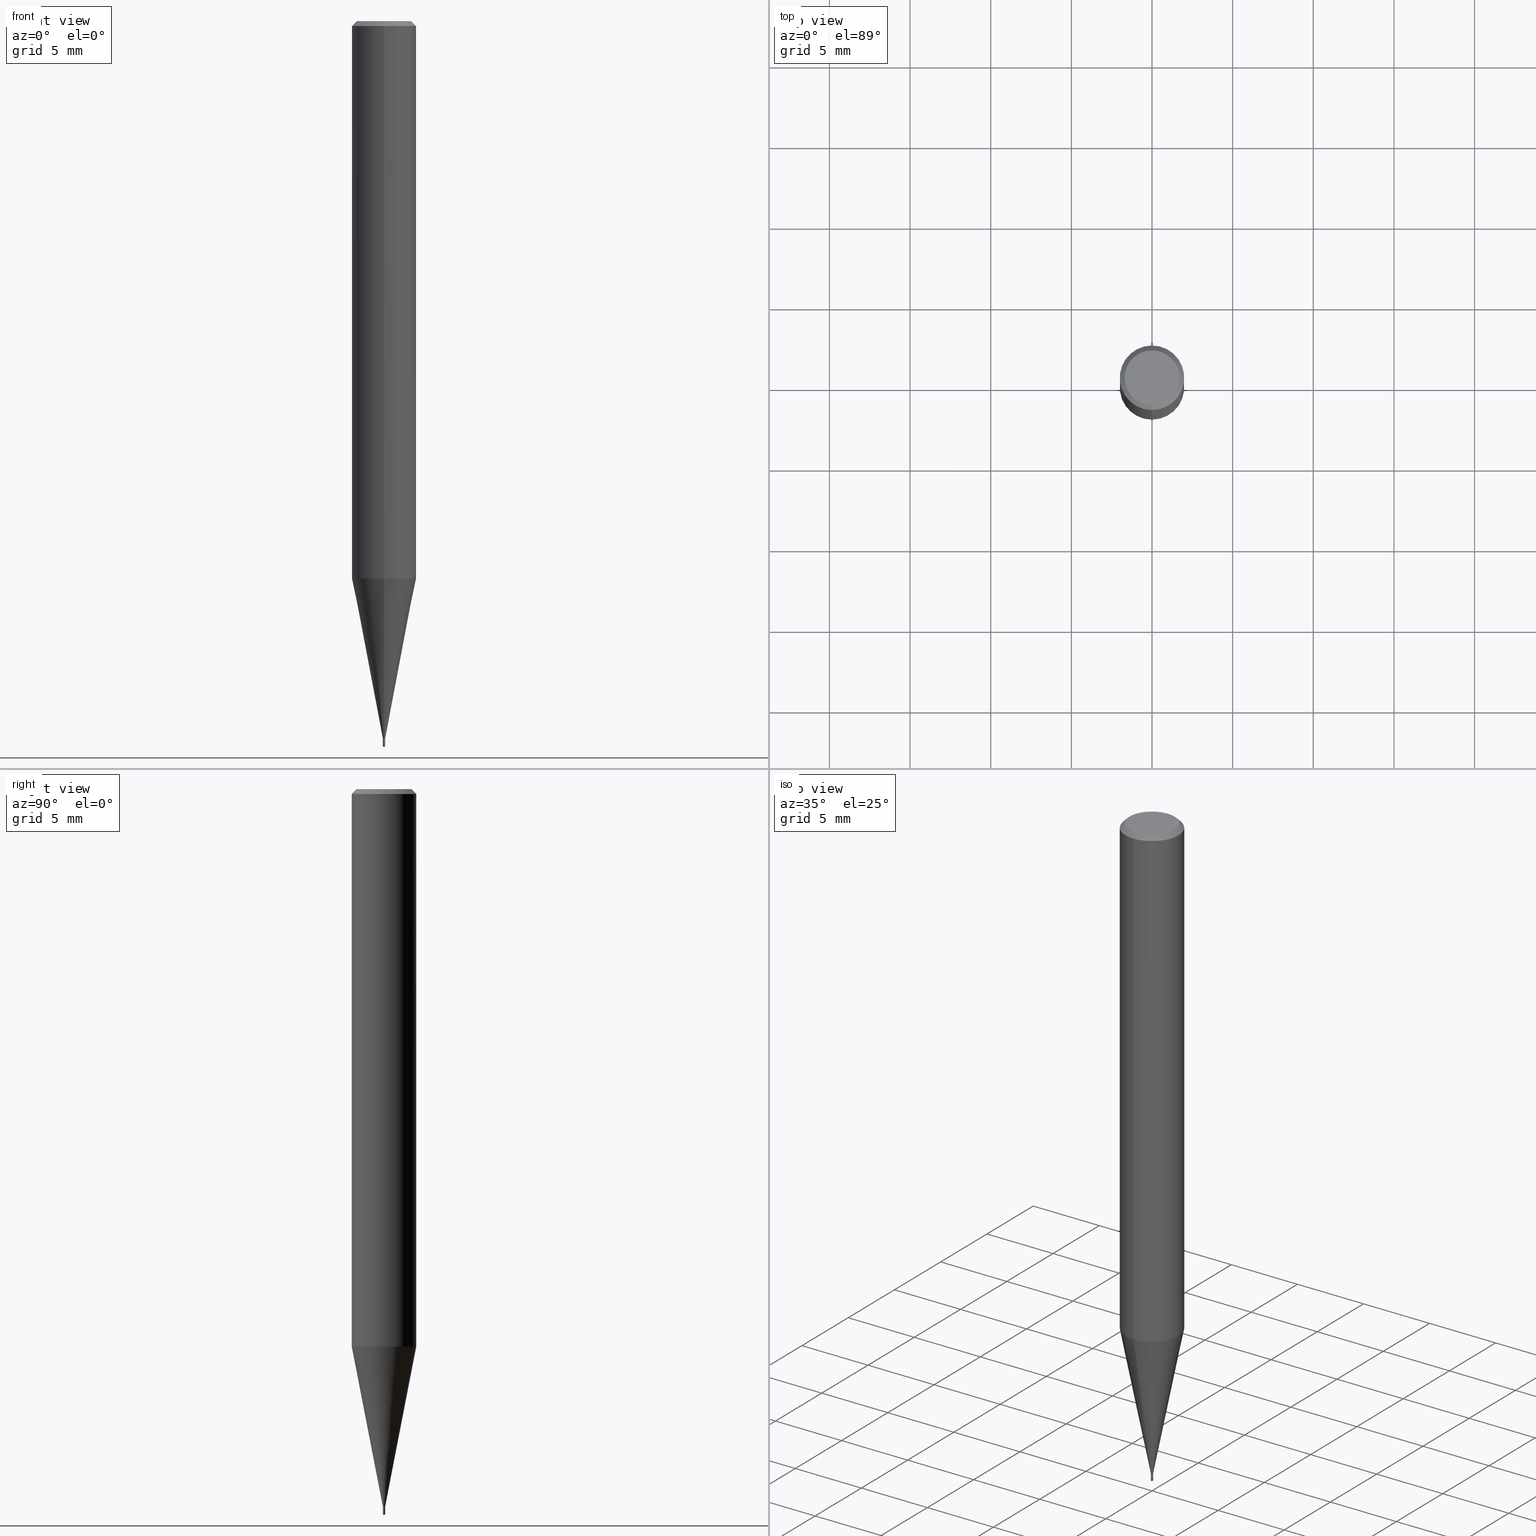
[diagram: canonical four-view strip — front | top / right | iso, engineering-drawing reading convention]
A machine part, canonical four-view strip (front | top / right | iso — engineering-drawing reading convention). The complete STEP part file that produces these views, byte-faithful:
ISO-10303-21;
HEADER;
FILE_DESCRIPTION(('no description'),'unknown implementation level');
FILE_NAME('HSLB20015-005-Huellk.stp','  ',('CIMSOURCE GmbH'),('CADClick - KiM GmbH - www.kimweb.de'),'unknown preprocess','ACIS','unknown authorization');
FILE_SCHEMA(('automotive_design'));
ENDSEC;
DATA;
#1=MECHANICAL_DESIGN_GEOMETRIC_PRESENTATION_REPRESENTATION(' ',(#14,#15,#16,#17,#18,#19,#20,#21,#22,#23,#24,#25,#26,#27,#28,#29,#30,#31,#32,#33,#34,#35,#36,#37,#38,#39,#40,#41,#42,#43,#44,#45,#46,#47,#48,#49,#50,#51,#52,#53,#54,#55,#56,#57,#58,#59,#60,#61,#62,#63,#64,#65,#66,#67,#68,#69,#70,#71,#72,#73,#74),#10);
#2=PRODUCT_DEFINITION_CONTEXT('',#75,'design');
#3=APPLICATION_PROTOCOL_DEFINITION('INTERNATIONAL STANDARD','automotive_design',1994,#75);
#4=PRODUCT_CATEGORY_RELATIONSHIP('NONE','NONE',#76,#77);
#5=SHAPE_DEFINITION_REPRESENTATION(#78,#79);
#6=PRODUCT_DEFINITION_CONTEXT('',#80,'design');
#7=APPLICATION_PROTOCOL_DEFINITION('INTERNATIONAL STANDARD','automotive_design',1994,#80);
#8=PRODUCT_CATEGORY_RELATIONSHIP('NONE','NONE',#81,#82);
#9=SHAPE_DEFINITION_REPRESENTATION(#83,#84);
#10= (GEOMETRIC_REPRESENTATION_CONTEXT(3)GLOBAL_UNCERTAINTY_ASSIGNED_CONTEXT((#87))GLOBAL_UNIT_ASSIGNED_CONTEXT((#89,#90,#91))REPRESENTATION_CONTEXT('NONE','WORKSPACE'));
#14=STYLED_ITEM('',(#93),#94);
#15=STYLED_ITEM('',(#95),#96);
#16=STYLED_ITEM('',(#97),#98);
#17=STYLED_ITEM('',(#99),#100);
#18=STYLED_ITEM('',(#101),#102);
#19=STYLED_ITEM('',(#103),#104);
#20=STYLED_ITEM('',(#105),#106);
#21=STYLED_ITEM('',(#107),#108);
#22=STYLED_ITEM('',(#109),#110);
#23=STYLED_ITEM('',(#111),#112);
#24=STYLED_ITEM('',(#113),#114);
#25=STYLED_ITEM('',(#115),#116);
#26=STYLED_ITEM('',(#117),#118);
#27=STYLED_ITEM('',(#119),#120);
#28=STYLED_ITEM('',(#121),#122);
#29=STYLED_ITEM('',(#123),#124);
#30=STYLED_ITEM('',(#125),#126);
#31=STYLED_ITEM('',(#127),#128);
#32=STYLED_ITEM('',(#129),#130);
#33=STYLED_ITEM('',(#131),#132);
#34=STYLED_ITEM('',(#133),#134);
#35=STYLED_ITEM('',(#135),#136);
#36=STYLED_ITEM('',(#137),#138);
#37=STYLED_ITEM('',(#139),#140);
#38=STYLED_ITEM('',(#141),#142);
#39=STYLED_ITEM('',(#143),#144);
#40=STYLED_ITEM('',(#145),#146);
#41=STYLED_ITEM('',(#147),#148);
#42=STYLED_ITEM('',(#149),#150);
#43=STYLED_ITEM('',(#151),#152);
#44=STYLED_ITEM('',(#153),#154);
#45=STYLED_ITEM('',(#155),#156);
#46=STYLED_ITEM('',(#157),#158);
#47=STYLED_ITEM('',(#159),#160);
#48=STYLED_ITEM('',(#161),#162);
#49=STYLED_ITEM('',(#163),#164);
#50=STYLED_ITEM('',(#165),#166);
#51=STYLED_ITEM('',(#167),#168);
#52=STYLED_ITEM('',(#169),#170);
#53=STYLED_ITEM('',(#171),#172);
#54=STYLED_ITEM('',(#173),#174);
#55=STYLED_ITEM('',(#175),#176);
#56=STYLED_ITEM('',(#177),#178);
#57=STYLED_ITEM('',(#179),#180);
#58=STYLED_ITEM('',(#181),#182);
#59=STYLED_ITEM('',(#183),#184);
#60=STYLED_ITEM('',(#185),#186);
#61=STYLED_ITEM('',(#187),#188);
#62=STYLED_ITEM('',(#189),#190);
#63=STYLED_ITEM('',(#191),#192);
#64=STYLED_ITEM('',(#193),#194);
#65=STYLED_ITEM('',(#195),#196);
#66=STYLED_ITEM('',(#197),#198);
#67=STYLED_ITEM('',(#199),#200);
#68=STYLED_ITEM('',(#201),#202);
#69=STYLED_ITEM('',(#203),#204);
#70=STYLED_ITEM('',(#205),#206);
#71=STYLED_ITEM('',(#207),#208);
#72=STYLED_ITEM('',(#209),#210);
#73=STYLED_ITEM('',(#211),#212);
#74=STYLED_ITEM('',(#213),#214);
#75=APPLICATION_CONTEXT(' ');
#76=PRODUCT_CATEGORY('part','NONE');
#77=PRODUCT_RELATED_PRODUCT_CATEGORY('detail',' ',(#215));
#78=PRODUCT_DEFINITION_SHAPE('NONE','NONE',#216);
#79=ADVANCED_BREP_SHAPE_REPRESENTATION('1',(#184,#217),#10);
#80=APPLICATION_CONTEXT(' ');
#81=PRODUCT_CATEGORY('part','NONE');
#82=PRODUCT_RELATED_PRODUCT_CATEGORY('detail',' ',(#218));
#83=PRODUCT_DEFINITION_SHAPE('NONE','NONE',#219);
#84=ADVANCED_BREP_SHAPE_REPRESENTATION('2',(#202,#220),#10);
#87=UNCERTAINTY_MEASURE_WITH_UNIT(LENGTH_MEASURE(1.0E-006),#89,'','');
#89= (CONVERSION_BASED_UNIT('MILLIMETRE',#223)LENGTH_UNIT()NAMED_UNIT(#226));
#90= (NAMED_UNIT(#228)PLANE_ANGLE_UNIT()SI_UNIT($,.RADIAN.));
#91= (NAMED_UNIT(#228)SOLID_ANGLE_UNIT()SI_UNIT($,.STERADIAN.));
#93=PRESENTATION_STYLE_ASSIGNMENT((#234));
#94=ADVANCED_FACE('',(#235),#236,.T.);
#95=PRESENTATION_STYLE_ASSIGNMENT((#237));
#96=ADVANCED_FACE('',(#238),#239,.T.);
#97=PRESENTATION_STYLE_ASSIGNMENT((#240));
#98=EDGE_CURVE('',#208,#170,#241,.T.);
#99=PRESENTATION_STYLE_ASSIGNMENT((#242));
#100=EDGE_CURVE('',#162,#198,#243,.T.);
#101=PRESENTATION_STYLE_ASSIGNMENT((#244));
#102=EDGE_CURVE('',#122,#194,#245,.T.);
#103=PRESENTATION_STYLE_ASSIGNMENT((#246));
#104=EDGE_CURVE('',#114,#180,#247,.T.);
#105=PRESENTATION_STYLE_ASSIGNMENT((#248));
#106=EDGE_CURVE('',#194,#112,#249,.T.);
#107=PRESENTATION_STYLE_ASSIGNMENT((#250));
#108=EDGE_CURVE('',#162,#114,#251,.T.);
#109=PRESENTATION_STYLE_ASSIGNMENT((#252));
#110=ADVANCED_FACE('',(#253),#254,.T.);
#111=PRESENTATION_STYLE_ASSIGNMENT((#255));
#112=VERTEX_POINT('',#256);
#113=PRESENTATION_STYLE_ASSIGNMENT((#257));
#114=VERTEX_POINT('',#258);
#115=PRESENTATION_STYLE_ASSIGNMENT((#259));
#116=VERTEX_POINT('',#260);
#117=PRESENTATION_STYLE_ASSIGNMENT((#261));
#118=ADVANCED_FACE('',(#262,#263),#264,.T.);
#119=PRESENTATION_STYLE_ASSIGNMENT((#265));
#120=EDGE_CURVE('',#194,#122,#266,.T.);
#121=PRESENTATION_STYLE_ASSIGNMENT((#267));
#122=VERTEX_POINT('',#268);
#123=PRESENTATION_STYLE_ASSIGNMENT((#269));
#124=VERTEX_POINT('',#270);
#125=PRESENTATION_STYLE_ASSIGNMENT((#271));
#126=EDGE_CURVE('',#144,#190,#272,.T.);
#127=PRESENTATION_STYLE_ASSIGNMENT((#273));
#128=VERTEX_POINT('',#274);
#129=PRESENTATION_STYLE_ASSIGNMENT((#275));
#130=ADVANCED_FACE('',(#276),#277,.T.);
#131=PRESENTATION_STYLE_ASSIGNMENT((#278));
#132=ADVANCED_FACE('',(#279),#280,.T.);
#133=PRESENTATION_STYLE_ASSIGNMENT((#281));
#134=ADVANCED_FACE('',(#282),#283,.T.);
#135=PRESENTATION_STYLE_ASSIGNMENT((#284));
#136=EDGE_CURVE('',#112,#170,#285,.T.);
#137=PRESENTATION_STYLE_ASSIGNMENT((#286));
#138=EDGE_CURVE('',#114,#160,#287,.T.);
#139=PRESENTATION_STYLE_ASSIGNMENT((#288));
#140=ADVANCED_FACE('',(#289),#290,.T.);
#141=PRESENTATION_STYLE_ASSIGNMENT((#291));
#142=EDGE_CURVE('',#160,#198,#292,.T.);
#143=PRESENTATION_STYLE_ASSIGNMENT((#293));
#144=VERTEX_POINT('',#294);
#145=PRESENTATION_STYLE_ASSIGNMENT((#295));
#146=EDGE_CURVE('',#204,#160,#296,.T.);
#147=PRESENTATION_STYLE_ASSIGNMENT((#297));
#148=EDGE_CURVE('',#124,#116,#298,.T.);
#149=PRESENTATION_STYLE_ASSIGNMENT((#299));
#150=ADVANCED_FACE('',(#300),#301,.T.);
#151=PRESENTATION_STYLE_ASSIGNMENT((#302));
#152=EDGE_CURVE('',#180,#204,#303,.T.);
#153=PRESENTATION_STYLE_ASSIGNMENT((#304));
#154=EDGE_CURVE('',#112,#128,#305,.T.);
#155=PRESENTATION_STYLE_ASSIGNMENT((#306));
#156=EDGE_CURVE('',#144,#116,#307,.T.);
#157=PRESENTATION_STYLE_ASSIGNMENT((#308));
#158=EDGE_CURVE('',#190,#144,#309,.T.);
#159=PRESENTATION_STYLE_ASSIGNMENT((#310));
#160=VERTEX_POINT('',#311);
#161=PRESENTATION_STYLE_ASSIGNMENT((#312));
#162=VERTEX_POINT('',#313);
#163=PRESENTATION_STYLE_ASSIGNMENT((#314));
#164=EDGE_CURVE('',#208,#128,#315,.T.);
#165=PRESENTATION_STYLE_ASSIGNMENT((#316));
#166=EDGE_CURVE('',#116,#124,#317,.T.);
#167=PRESENTATION_STYLE_ASSIGNMENT((#318));
#168=EDGE_CURVE('',#128,#112,#319,.T.);
#169=PRESENTATION_STYLE_ASSIGNMENT((#320));
#170=VERTEX_POINT('',#321);
#171=PRESENTATION_STYLE_ASSIGNMENT((#322));
#172=ADVANCED_FACE('',(#323),#324,.T.);
#173=PRESENTATION_STYLE_ASSIGNMENT((#325));
#174=EDGE_CURVE('',#204,#180,#326,.T.);
#175=PRESENTATION_STYLE_ASSIGNMENT((#327));
#176=ADVANCED_FACE('',(#328),#329,.T.);
#177=PRESENTATION_STYLE_ASSIGNMENT((#330));
#178=ADVANCED_FACE('',(#331),#332,.T.);
#179=PRESENTATION_STYLE_ASSIGNMENT((#333));
#180=VERTEX_POINT('',#334);
#181=PRESENTATION_STYLE_ASSIGNMENT((#335));
#182=ADVANCED_FACE('',(#336),#337,.T.);
#183=PRESENTATION_STYLE_ASSIGNMENT((#338));
#184=MANIFOLD_SOLID_BREP('1',#339);
#185=PRESENTATION_STYLE_ASSIGNMENT((#340));
#186=ADVANCED_FACE('',(#341),#342,.T.);
#187=PRESENTATION_STYLE_ASSIGNMENT((#343));
#188=EDGE_CURVE('',#124,#116,#344,.T.);
#189=PRESENTATION_STYLE_ASSIGNMENT((#345));
#190=VERTEX_POINT('',#346);
#191=PRESENTATION_STYLE_ASSIGNMENT((#347));
#192=EDGE_CURVE('',#198,#162,#348,.T.);
#193=PRESENTATION_STYLE_ASSIGNMENT((#349));
#194=VERTEX_POINT('',#350);
#195=PRESENTATION_STYLE_ASSIGNMENT((#351));
#196=ADVANCED_FACE('',(#352),#353,.T.);
#197=PRESENTATION_STYLE_ASSIGNMENT((#354));
#198=VERTEX_POINT('',#355);
#199=PRESENTATION_STYLE_ASSIGNMENT((#356));
#200=EDGE_CURVE('',#124,#190,#357,.T.);
#201=PRESENTATION_STYLE_ASSIGNMENT((#358));
#202=MANIFOLD_SOLID_BREP('2',#359);
#203=PRESENTATION_STYLE_ASSIGNMENT((#360));
#204=VERTEX_POINT('',#361);
#205=PRESENTATION_STYLE_ASSIGNMENT((#362));
#206=EDGE_CURVE('',#128,#122,#363,.T.);
#207=PRESENTATION_STYLE_ASSIGNMENT((#364));
#208=VERTEX_POINT('',#365);
#209=PRESENTATION_STYLE_ASSIGNMENT((#366));
#210=EDGE_CURVE('',#170,#208,#367,.T.);
#211=PRESENTATION_STYLE_ASSIGNMENT((#368));
#212=ADVANCED_FACE('',(#369),#370,.T.);
#213=PRESENTATION_STYLE_ASSIGNMENT((#371));
#214=EDGE_CURVE('',#160,#114,#372,.T.);
#215=PRODUCT('1','1','PART-1-DESC',(#373));
#216=PRODUCT_DEFINITION('NONE','NONE',#374,#2);
#217=AXIS2_PLACEMENT_3D('',#375,#376,#377);
#218=PRODUCT('2','2','PART-2-DESC',(#378));
#219=PRODUCT_DEFINITION('NONE','NONE',#379,#6);
#220=AXIS2_PLACEMENT_3D('',#380,#381,#382);
#223=LENGTH_MEASURE_WITH_UNIT(LENGTH_MEASURE(1.0),#383);
#226=DIMENSIONAL_EXPONENTS(1.0,0.0,0.0,0.0,0.0,0.0,0.0);
#228=DIMENSIONAL_EXPONENTS(0.0,0.0,0.0,0.0,0.0,0.0,0.0);
#234=SURFACE_STYLE_USAGE(.BOTH.,#384);
#235=FACE_OUTER_BOUND('',#385,.T.);
#236=CYLINDRICAL_SURFACE('',#386,2.0);
#237=SURFACE_STYLE_USAGE(.BOTH.,#387);
#238=FACE_OUTER_BOUND('',#388,.T.);
#239=CONICAL_SURFACE('',#389,1.85,0.785398163397453);
#240=CURVE_STYLE('',#390,POSITIVE_LENGTH_MEASURE(1.0E-006),#391);
#241=CIRCLE('',#392,1.99995);
#242=CURVE_STYLE('',#393,POSITIVE_LENGTH_MEASURE(1.0E-006),#394);
#243=CIRCLE('',#395,1.7);
#244=CURVE_STYLE('',#396,POSITIVE_LENGTH_MEASURE(1.0E-006),#397);
#245=CIRCLE('',#398,0.06745);
#246=CURVE_STYLE('',#399,POSITIVE_LENGTH_MEASURE(1.0E-006),#400);
#247=LINE('',#401,#402);
#248=CURVE_STYLE('',#403,POSITIVE_LENGTH_MEASURE(1.0E-006),#404);
#249=LINE('',#405,#406);
#250=CURVE_STYLE('',#407,POSITIVE_LENGTH_MEASURE(1.0E-006),#408);
#251=LINE('',#409,#410);
#252=SURFACE_STYLE_USAGE(.BOTH.,#411);
#253=FACE_OUTER_BOUND('',#412,.T.);
#254=SPHERICAL_SURFACE('',#413,0.075);
#255=POINT_STYLE(' ',#414,POSITIVE_LENGTH_MEASURE(1.0E-006),#415);
#256=CARTESIAN_POINT('',(8.25996985653193E-018,-0.06745,-44.5));
#257=POINT_STYLE(' ',#416,POSITIVE_LENGTH_MEASURE(1.0E-006),#417);
#258=CARTESIAN_POINT('',(0.0,2.0,-0.299999999999997));
#259=POINT_STYLE(' ',#418,POSITIVE_LENGTH_MEASURE(1.0E-006),#419);
#260=CARTESIAN_POINT('',(0.0,0.075,-44.925));
#261=SURFACE_STYLE_USAGE(.BOTH.,#420);
#262=FACE_OUTER_BOUND('',#421,.T.);
#263=FACE_BOUND('',#422,.T.);
#264=PLANE('',#423);
#265=CURVE_STYLE('',#424,POSITIVE_LENGTH_MEASURE(1.0E-006),#425);
#266=CIRCLE('',#426,0.06745);
#267=POINT_STYLE(' ',#427,POSITIVE_LENGTH_MEASURE(1.0E-006),#428);
#268=CARTESIAN_POINT('',(0.0,0.06745,-44.88));
#269=POINT_STYLE(' ',#429,POSITIVE_LENGTH_MEASURE(1.0E-006),#430);
#270=CARTESIAN_POINT('',(9.18454765366782E-018,-0.0749999999999999,-44.925));
#271=CURVE_STYLE('',#431,POSITIVE_LENGTH_MEASURE(1.0E-006),#432);
#272=CIRCLE('',#433,0.0749);
#273=POINT_STYLE(' ',#434,POSITIVE_LENGTH_MEASURE(1.0E-006),#435);
#274=CARTESIAN_POINT('',(0.0,0.06745,-44.5));
#275=SURFACE_STYLE_USAGE(.BOTH.,#436);
#276=FACE_OUTER_BOUND('',#437,.T.);
#277=PLANE('',#438);
#278=SURFACE_STYLE_USAGE(.BOTH.,#439);
#279=FACE_OUTER_BOUND('',#440,.T.);
#280=SPHERICAL_SURFACE('',#441,0.075);
#281=SURFACE_STYLE_USAGE(.BOTH.,#442);
#282=FACE_OUTER_BOUND('',#443,.T.);
#283=CONICAL_SURFACE('',#444,1.0337,0.191983403757332);
#284=CURVE_STYLE('',#445,POSITIVE_LENGTH_MEASURE(1.0E-006),#446);
#285=LINE('',#447,#448);
#286=CURVE_STYLE('',#449,POSITIVE_LENGTH_MEASURE(1.0E-006),#450);
#287=CIRCLE('',#451,2.0);
#288=SURFACE_STYLE_USAGE(.BOTH.,#452);
#289=FACE_OUTER_BOUND('',#453,.T.);
#290=PLANE('',#454);
#291=CURVE_STYLE('',#455,POSITIVE_LENGTH_MEASURE(1.0E-006),#456);
#292=LINE('',#457,#458);
#293=POINT_STYLE(' ',#459,POSITIVE_LENGTH_MEASURE(1.0E-006),#460);
#294=CARTESIAN_POINT('',(0.0,0.0749,-44.88));
#295=CURVE_STYLE('',#461,POSITIVE_LENGTH_MEASURE(1.0E-006),#462);
#296=LINE('',#463,#464);
#297=CURVE_STYLE('',#465,POSITIVE_LENGTH_MEASURE(1.0E-006),#466);
#298=CIRCLE('',#467,0.075);
#299=SURFACE_STYLE_USAGE(.BOTH.,#468);
#300=FACE_OUTER_BOUND('',#469,.T.);
#301=CONICAL_SURFACE('',#470,0.07495,0.00222221856425416);
#302=CURVE_STYLE('',#471,POSITIVE_LENGTH_MEASURE(1.0E-006),#472);
#303=CIRCLE('',#473,2.0);
#304=CURVE_STYLE('',#474,POSITIVE_LENGTH_MEASURE(1.0E-006),#475);
#305=CIRCLE('',#476,0.06745);
#306=CURVE_STYLE('',#477,POSITIVE_LENGTH_MEASURE(1.0E-006),#478);
#307=LINE('',#479,#480);
#308=CURVE_STYLE('',#481,POSITIVE_LENGTH_MEASURE(1.0E-006),#482);
#309=CIRCLE('',#483,0.0749);
#310=POINT_STYLE(' ',#484,POSITIVE_LENGTH_MEASURE(1.0E-006),#485);
#311=CARTESIAN_POINT('',(2.44921270764475E-016,-2.0,-0.299999999999997));
#312=POINT_STYLE(' ',#486,POSITIVE_LENGTH_MEASURE(1.0E-006),#487);
#313=CARTESIAN_POINT('',(0.0,1.7,0.0));
#314=CURVE_STYLE('',#488,POSITIVE_LENGTH_MEASURE(1.0E-006),#489);
#315=LINE('',#490,#491);
#316=CURVE_STYLE('',#492,POSITIVE_LENGTH_MEASURE(1.0E-006),#493);
#317=CIRCLE('',#494,0.075);
#318=CURVE_STYLE('',#495,POSITIVE_LENGTH_MEASURE(1.0E-006),#496);
#319=CIRCLE('',#497,0.06745);
#320=POINT_STYLE(' ',#498,POSITIVE_LENGTH_MEASURE(1.0E-006),#499);
#321=CARTESIAN_POINT('',(2.44915147732706E-016,-1.99995,-34.558));
#322=SURFACE_STYLE_USAGE(.BOTH.,#500);
#323=FACE_OUTER_BOUND('',#501,.T.);
#324=CYLINDRICAL_SURFACE('',#502,0.06745);
#325=CURVE_STYLE('',#503,POSITIVE_LENGTH_MEASURE(1.0E-006),#504);
#326=CIRCLE('',#505,2.0);
#327=SURFACE_STYLE_USAGE(.BOTH.,#506);
#328=FACE_OUTER_BOUND('',#507,.T.);
#329=CONICAL_SURFACE('',#508,1.0337,0.191983403757332);
#330=SURFACE_STYLE_USAGE(.BOTH.,#509);
#331=FACE_OUTER_BOUND('',#510,.T.);
#332=CYLINDRICAL_SURFACE('',#511,2.0);
#333=POINT_STYLE(' ',#512,POSITIVE_LENGTH_MEASURE(1.0E-006),#513);
#334=CARTESIAN_POINT('',(0.0,2.0,-34.558));
#335=SURFACE_STYLE_USAGE(.BOTH.,#514);
#336=FACE_OUTER_BOUND('',#515,.T.);
#337=CONICAL_SURFACE('',#516,1.85,0.785398163397453);
#338=SURFACE_STYLE_USAGE(.BOTH.,#517);
#339=CLOSED_SHELL('',(#212,#176,#94,#182,#118,#140,#96,#178,#134,#172,#196));
#340=SURFACE_STYLE_USAGE(.BOTH.,#518);
#341=FACE_OUTER_BOUND('',#519,.T.);
#342=CONICAL_SURFACE('',#520,0.07495,0.00222221856425416);
#343=CURVE_STYLE('',#521,POSITIVE_LENGTH_MEASURE(1.0E-006),#522);
#344=CIRCLE('',#523,0.075);
#345=POINT_STYLE(' ',#524,POSITIVE_LENGTH_MEASURE(1.0E-006),#525);
#346=CARTESIAN_POINT('',(9.1723015901296E-018,-0.0749,-44.88));
#347=CURVE_STYLE('',#526,POSITIVE_LENGTH_MEASURE(1.0E-006),#527);
#348=CIRCLE('',#528,1.7);
#349=POINT_STYLE(' ',#529,POSITIVE_LENGTH_MEASURE(1.0E-006),#530);
#350=CARTESIAN_POINT('',(8.25996985653193E-018,-0.06745,-44.88));
#351=SURFACE_STYLE_USAGE(.BOTH.,#531);
#352=FACE_OUTER_BOUND('',#532,.T.);
#353=PLANE('',#533);
#354=POINT_STYLE(' ',#534,POSITIVE_LENGTH_MEASURE(1.0E-006),#535);
#355=CARTESIAN_POINT('',(2.08183080149804E-016,-1.7,0.0));
#356=CURVE_STYLE('',#536,POSITIVE_LENGTH_MEASURE(1.0E-006),#537);
#357=LINE('',#538,#539);
#358=SURFACE_STYLE_USAGE(.BOTH.,#540);
#359=CLOSED_SHELL('',(#110,#150,#130,#186,#132));
#360=POINT_STYLE(' ',#541,POSITIVE_LENGTH_MEASURE(1.0E-006),#542);
#361=CARTESIAN_POINT('',(2.44921270764475E-016,-2.0,-34.558));
#362=CURVE_STYLE('',#543,POSITIVE_LENGTH_MEASURE(1.0E-006),#544);
#363=LINE('',#545,#546);
#364=POINT_STYLE(' ',#547,POSITIVE_LENGTH_MEASURE(1.0E-006),#548);
#365=CARTESIAN_POINT('',(0.0,1.99995,-34.558));
#366=CURVE_STYLE('',#549,POSITIVE_LENGTH_MEASURE(1.0E-006),#550);
#367=CIRCLE('',#551,1.99995);
#368=SURFACE_STYLE_USAGE(.BOTH.,#552);
#369=FACE_OUTER_BOUND('',#553,.T.);
#370=CYLINDRICAL_SURFACE('',#554,0.06745);
#371=CURVE_STYLE('',#555,POSITIVE_LENGTH_MEASURE(1.0E-006),#556);
#372=CIRCLE('',#557,2.0);
#373=PRODUCT_CONTEXT('',#75,'mechanical');
#374=PRODUCT_DEFINITION_FORMATION_WITH_SPECIFIED_SOURCE(' ','NONE',#215,.NOT_KNOWN.);
#375=CARTESIAN_POINT('',(0.0,0.0,0.0));
#376=DIRECTION('',(0.0,0.0,1.0));
#377=DIRECTION('',(1.0,0.0,0.0));
#378=PRODUCT_CONTEXT('',#80,'mechanical');
#379=PRODUCT_DEFINITION_FORMATION_WITH_SPECIFIED_SOURCE(' ','NONE',#218,.NOT_KNOWN.);
#380=CARTESIAN_POINT('',(0.0,0.0,0.0));
#381=DIRECTION('',(0.0,0.0,1.0));
#382=DIRECTION('',(1.0,0.0,0.0));
#383= (NAMED_UNIT(#226)LENGTH_UNIT()SI_UNIT(.MILLI.,.METRE.));
#384=SURFACE_SIDE_STYLE('',(#559));
#385=EDGE_LOOP('',(#560,#561,#562,#563));
#386=AXIS2_PLACEMENT_3D('',#564,#565,#566);
#387=SURFACE_SIDE_STYLE('',(#567));
#388=EDGE_LOOP('',(#568,#569,#570,#571));
#389=AXIS2_PLACEMENT_3D('',#572,#573,#574);
#390=DRAUGHTING_PRE_DEFINED_CURVE_FONT('continuous');
#391=COLOUR_RGB('',0.498039215803146,0.498039215803146,0.498039215803146);
#392=AXIS2_PLACEMENT_3D('',#575,#576,#577);
#393=DRAUGHTING_PRE_DEFINED_CURVE_FONT('continuous');
#394=COLOUR_RGB('',0.498039215803146,0.498039215803146,0.498039215803146);
#395=AXIS2_PLACEMENT_3D('',#578,#579,#580);
#396=DRAUGHTING_PRE_DEFINED_CURVE_FONT('continuous');
#397=COLOUR_RGB('',0.498039215803146,0.498039215803146,0.498039215803146);
#398=AXIS2_PLACEMENT_3D('',#581,#582,#583);
#399=DRAUGHTING_PRE_DEFINED_CURVE_FONT('continuous');
#400=COLOUR_RGB('',0.498039215803146,0.498039215803146,0.498039215803146);
#401=CARTESIAN_POINT('',(-2.44921270764475E-016,2.0,-17.429));
#402=VECTOR('',#584,1.0);
#403=DRAUGHTING_PRE_DEFINED_CURVE_FONT('continuous');
#404=COLOUR_RGB('',0.498039215803146,0.498039215803146,0.498039215803146);
#405=CARTESIAN_POINT('',(8.25996985653193E-018,-0.06745,-44.69));
#406=VECTOR('',#585,1.0);
#407=DRAUGHTING_PRE_DEFINED_CURVE_FONT('continuous');
#408=COLOUR_RGB('',0.498039215803146,0.498039215803146,0.498039215803146);
#409=CARTESIAN_POINT('',(-2.2655217545714E-016,1.85,-0.149999999999999));
#410=VECTOR('',#586,1.0);
#411=SURFACE_SIDE_STYLE('',(#587));
#412=EDGE_LOOP('',(#588,#589));
#413=AXIS2_PLACEMENT_3D('',#590,#591,#592);
#414=PRE_DEFINED_MARKER('');
#415=COLOUR_RGB('',0.498039215803146,0.498039215803146,0.498039215803146);
#416=PRE_DEFINED_MARKER('');
#417=COLOUR_RGB('',0.498039215803146,0.498039215803146,0.498039215803146);
#418=PRE_DEFINED_MARKER('');
#419=COLOUR_RGB('',0.800000011920929,0.800000011920929,0.800000011920929);
#420=SURFACE_SIDE_STYLE('',(#593));
#421=EDGE_LOOP('',(#594,#595));
#422=EDGE_LOOP('',(#596,#597));
#423=AXIS2_PLACEMENT_3D('',#598,#599,#600);
#424=DRAUGHTING_PRE_DEFINED_CURVE_FONT('continuous');
#425=COLOUR_RGB('',0.498039215803146,0.498039215803146,0.498039215803146);
#426=AXIS2_PLACEMENT_3D('',#601,#602,#603);
#427=PRE_DEFINED_MARKER('');
#428=COLOUR_RGB('',0.498039215803146,0.498039215803146,0.498039215803146);
#429=PRE_DEFINED_MARKER('');
#430=COLOUR_RGB('',0.800000011920929,0.800000011920929,0.800000011920929);
#431=DRAUGHTING_PRE_DEFINED_CURVE_FONT('continuous');
#432=COLOUR_RGB('',0.800000011920929,0.800000011920929,0.800000011920929);
#433=AXIS2_PLACEMENT_3D('',#604,#605,#606);
#434=PRE_DEFINED_MARKER('');
#435=COLOUR_RGB('',0.498039215803146,0.498039215803146,0.498039215803146);
#436=SURFACE_SIDE_STYLE('',(#607));
#437=EDGE_LOOP('',(#608,#609));
#438=AXIS2_PLACEMENT_3D('',#610,#611,#612);
#439=SURFACE_SIDE_STYLE('',(#613));
#440=EDGE_LOOP('',(#614,#615));
#441=AXIS2_PLACEMENT_3D('',#616,#617,#618);
#442=SURFACE_SIDE_STYLE('',(#619));
#443=EDGE_LOOP('',(#620,#621,#622,#623));
#444=AXIS2_PLACEMENT_3D('',#624,#625,#626);
#445=DRAUGHTING_PRE_DEFINED_CURVE_FONT('continuous');
#446=COLOUR_RGB('',0.498039215803146,0.498039215803146,0.498039215803146);
#447=CARTESIAN_POINT('',(1.26587558794619E-016,-1.0337,-39.529));
#448=VECTOR('',#627,1.0);
#449=DRAUGHTING_PRE_DEFINED_CURVE_FONT('continuous');
#450=COLOUR_RGB('',0.498039215803146,0.498039215803146,0.498039215803146);
#451=AXIS2_PLACEMENT_3D('',#628,#629,#630);
#452=SURFACE_SIDE_STYLE('',(#631));
#453=EDGE_LOOP('',(#632,#633));
#454=AXIS2_PLACEMENT_3D('',#634,#635,#636);
#455=DRAUGHTING_PRE_DEFINED_CURVE_FONT('continuous');
#456=COLOUR_RGB('',0.498039215803146,0.498039215803146,0.498039215803146);
#457=CARTESIAN_POINT('',(2.2655217545714E-016,-1.85,-0.149999999999999));
#458=VECTOR('',#637,1.0);
#459=PRE_DEFINED_MARKER('');
#460=COLOUR_RGB('',0.800000011920929,0.800000011920929,0.800000011920929);
#461=DRAUGHTING_PRE_DEFINED_CURVE_FONT('continuous');
#462=COLOUR_RGB('',0.498039215803146,0.498039215803146,0.498039215803146);
#463=CARTESIAN_POINT('',(2.44921270764475E-016,-2.0,-17.429));
#464=VECTOR('',#638,1.0);
#465=DRAUGHTING_PRE_DEFINED_CURVE_FONT('continuous');
#466=COLOUR_RGB('',0.800000011920929,0.800000011920929,0.800000011920929);
#467=AXIS2_PLACEMENT_3D('',#639,#640,#641);
#468=SURFACE_SIDE_STYLE('',(#642));
#469=EDGE_LOOP('',(#643,#644,#645,#646));
#470=AXIS2_PLACEMENT_3D('',#647,#648,#649);
#471=DRAUGHTING_PRE_DEFINED_CURVE_FONT('continuous');
#472=COLOUR_RGB('',0.498039215803146,0.498039215803146,0.498039215803146);
#473=AXIS2_PLACEMENT_3D('',#650,#651,#652);
#474=DRAUGHTING_PRE_DEFINED_CURVE_FONT('continuous');
#475=COLOUR_RGB('',0.498039215803146,0.498039215803146,0.498039215803146);
#476=AXIS2_PLACEMENT_3D('',#653,#654,#655);
#477=DRAUGHTING_PRE_DEFINED_CURVE_FONT('continuous');
#478=COLOUR_RGB('',0.800000011920929,0.800000011920929,0.800000011920929);
#479=CARTESIAN_POINT('',(-9.17842462189872E-018,0.07495,-44.9025));
#480=VECTOR('',#656,1.0);
#481=DRAUGHTING_PRE_DEFINED_CURVE_FONT('continuous');
#482=COLOUR_RGB('',0.800000011920929,0.800000011920929,0.800000011920929);
#483=AXIS2_PLACEMENT_3D('',#657,#658,#659);
#484=PRE_DEFINED_MARKER('');
#485=COLOUR_RGB('',0.498039215803146,0.498039215803146,0.498039215803146);
#486=PRE_DEFINED_MARKER('');
#487=COLOUR_RGB('',0.498039215803146,0.498039215803146,0.498039215803146);
#488=DRAUGHTING_PRE_DEFINED_CURVE_FONT('continuous');
#489=COLOUR_RGB('',0.498039215803146,0.498039215803146,0.498039215803146);
#490=CARTESIAN_POINT('',(-1.26587558794619E-016,1.0337,-39.529));
#491=VECTOR('',#660,1.0);
#492=DRAUGHTING_PRE_DEFINED_CURVE_FONT('continuous');
#493=COLOUR_RGB('',0.800000011920929,0.800000011920929,0.800000011920929);
#494=AXIS2_PLACEMENT_3D('',#661,#662,#663);
#495=DRAUGHTING_PRE_DEFINED_CURVE_FONT('continuous');
#496=COLOUR_RGB('',0.498039215803146,0.498039215803146,0.498039215803146);
#497=AXIS2_PLACEMENT_3D('',#664,#665,#666);
#498=PRE_DEFINED_MARKER('');
#499=COLOUR_RGB('',0.498039215803146,0.498039215803146,0.498039215803146);
#500=SURFACE_SIDE_STYLE('',(#667));
#501=EDGE_LOOP('',(#668,#669,#670,#671));
#502=AXIS2_PLACEMENT_3D('',#672,#673,#674);
#503=DRAUGHTING_PRE_DEFINED_CURVE_FONT('continuous');
#504=COLOUR_RGB('',0.498039215803146,0.498039215803146,0.498039215803146);
#505=AXIS2_PLACEMENT_3D('',#675,#676,#677);
#506=SURFACE_SIDE_STYLE('',(#678));
#507=EDGE_LOOP('',(#679,#680,#681,#682));
#508=AXIS2_PLACEMENT_3D('',#683,#684,#685);
#509=SURFACE_SIDE_STYLE('',(#686));
#510=EDGE_LOOP('',(#687,#688,#689,#690));
#511=AXIS2_PLACEMENT_3D('',#691,#692,#693);
#512=PRE_DEFINED_MARKER('');
#513=COLOUR_RGB('',0.498039215803146,0.498039215803146,0.498039215803146);
#514=SURFACE_SIDE_STYLE('',(#694));
#515=EDGE_LOOP('',(#695,#696,#697,#698));
#516=AXIS2_PLACEMENT_3D('',#699,#700,#701);
#517=SURFACE_SIDE_STYLE('',(#702));
#518=SURFACE_SIDE_STYLE('',(#703));
#519=EDGE_LOOP('',(#704,#705,#706,#707));
#520=AXIS2_PLACEMENT_3D('',#708,#709,#710);
#521=DRAUGHTING_PRE_DEFINED_CURVE_FONT('continuous');
#522=COLOUR_RGB('',0.800000011920929,0.800000011920929,0.800000011920929);
#523=AXIS2_PLACEMENT_3D('',#711,#712,#713);
#524=PRE_DEFINED_MARKER('');
#525=COLOUR_RGB('',0.800000011920929,0.800000011920929,0.800000011920929);
#526=DRAUGHTING_PRE_DEFINED_CURVE_FONT('continuous');
#527=COLOUR_RGB('',0.498039215803146,0.498039215803146,0.498039215803146);
#528=AXIS2_PLACEMENT_3D('',#714,#715,#716);
#529=PRE_DEFINED_MARKER('');
#530=COLOUR_RGB('',0.498039215803146,0.498039215803146,0.498039215803146);
#531=SURFACE_SIDE_STYLE('',(#717));
#532=EDGE_LOOP('',(#718,#719));
#533=AXIS2_PLACEMENT_3D('',#720,#721,#722);
#534=PRE_DEFINED_MARKER('');
#535=COLOUR_RGB('',0.498039215803146,0.498039215803146,0.498039215803146);
#536=DRAUGHTING_PRE_DEFINED_CURVE_FONT('continuous');
#537=COLOUR_RGB('',0.800000011920929,0.800000011920929,0.800000011920929);
#538=CARTESIAN_POINT('',(9.17842462189871E-018,-0.07495,-44.9025));
#539=VECTOR('',#723,1.0);
#540=SURFACE_SIDE_STYLE('',(#724));
#541=PRE_DEFINED_MARKER('');
#542=COLOUR_RGB('',0.498039215803146,0.498039215803146,0.498039215803146);
#543=DRAUGHTING_PRE_DEFINED_CURVE_FONT('continuous');
#544=COLOUR_RGB('',0.498039215803146,0.498039215803146,0.498039215803146);
#545=CARTESIAN_POINT('',(-8.25996985653193E-018,0.06745,-44.69));
#546=VECTOR('',#725,1.0);
#547=PRE_DEFINED_MARKER('');
#548=COLOUR_RGB('',0.498039215803146,0.498039215803146,0.498039215803146);
#549=DRAUGHTING_PRE_DEFINED_CURVE_FONT('continuous');
#550=COLOUR_RGB('',0.498039215803146,0.498039215803146,0.498039215803146);
#551=AXIS2_PLACEMENT_3D('',#726,#727,#728);
#552=SURFACE_SIDE_STYLE('',(#729));
#553=EDGE_LOOP('',(#730,#731,#732,#733));
#554=AXIS2_PLACEMENT_3D('',#734,#735,#736);
#555=DRAUGHTING_PRE_DEFINED_CURVE_FONT('continuous');
#556=COLOUR_RGB('',0.498039215803146,0.498039215803146,0.498039215803146);
#557=AXIS2_PLACEMENT_3D('',#737,#738,#739);
#559=SURFACE_STYLE_FILL_AREA(#740);
#560=ORIENTED_EDGE('',*,*,#104,.F.);
#561=ORIENTED_EDGE('',*,*,#138,.T.);
#562=ORIENTED_EDGE('',*,*,#146,.F.);
#563=ORIENTED_EDGE('',*,*,#152,.F.);
#564=CARTESIAN_POINT('',(0.0,0.0,-17.429));
#565=DIRECTION('',(-0.0,-0.0,1.0));
#566=DIRECTION('',(0.0,1.0,0.0));
#567=SURFACE_STYLE_FILL_AREA(#741);
#568=ORIENTED_EDGE('',*,*,#108,.T.);
#569=ORIENTED_EDGE('',*,*,#214,.F.);
#570=ORIENTED_EDGE('',*,*,#142,.T.);
#571=ORIENTED_EDGE('',*,*,#192,.T.);
#572=CARTESIAN_POINT('',(0.0,0.0,-0.149999999999999));
#573=DIRECTION('',(0.0,-0.0,-1.0));
#574=DIRECTION('',(0.0,1.0,0.0));
#575=CARTESIAN_POINT('',(0.0,0.0,-34.558));
#576=DIRECTION('',(0.0,0.0,-1.0));
#577=DIRECTION('',(0.0,1.0,0.0));
#578=CARTESIAN_POINT('',(0.0,0.0,0.0));
#579=DIRECTION('',(0.0,0.0,-1.0));
#580=DIRECTION('',(0.0,1.0,0.0));
#581=CARTESIAN_POINT('',(0.0,0.0,-44.88));
#582=DIRECTION('',(0.0,0.0,-1.0));
#583=DIRECTION('',(0.0,1.0,0.0));
#584=DIRECTION('',(0.0,0.0,-1.0));
#585=DIRECTION('',(-0.0,-0.0,1.0));
#586=DIRECTION('',(-8.6592745707194E-017,0.707106781186551,-0.707106781186544));
#587=SURFACE_STYLE_FILL_AREA(#742);
#588=ORIENTED_EDGE('',*,*,#188,.F.);
#589=ORIENTED_EDGE('',*,*,#148,.T.);
#590=CARTESIAN_POINT('',(0.0,0.0,-44.925));
#591=DIRECTION('',(0.0,1.0,0.0));
#592=DIRECTION('',(0.0,0.0,-1.0));
#593=SURFACE_STYLE_FILL_AREA(#743);
#594=ORIENTED_EDGE('',*,*,#152,.T.);
#595=ORIENTED_EDGE('',*,*,#174,.T.);
#596=ORIENTED_EDGE('',*,*,#98,.F.);
#597=ORIENTED_EDGE('',*,*,#210,.F.);
#598=CARTESIAN_POINT('',(0.0,1.0,-34.558));
#599=DIRECTION('',(0.0,0.0,-1.0));
#600=DIRECTION('',(0.0,1.0,0.0));
#601=CARTESIAN_POINT('',(0.0,0.0,-44.88));
#602=DIRECTION('',(0.0,0.0,-1.0));
#603=DIRECTION('',(0.0,1.0,0.0));
#604=CARTESIAN_POINT('',(0.0,0.0,-44.88));
#605=DIRECTION('',(0.0,0.0,-1.0));
#606=DIRECTION('',(0.0,1.0,0.0));
#607=SURFACE_STYLE_FILL_AREA(#744);
#608=ORIENTED_EDGE('',*,*,#126,.F.);
#609=ORIENTED_EDGE('',*,*,#158,.F.);
#610=CARTESIAN_POINT('',(0.0,0.03745,-44.88));
#611=DIRECTION('',(-0.0,0.0,1.0));
#612=DIRECTION('',(0.0,-1.0,0.0));
#613=SURFACE_STYLE_FILL_AREA(#745);
#614=ORIENTED_EDGE('',*,*,#188,.T.);
#615=ORIENTED_EDGE('',*,*,#166,.T.);
#616=CARTESIAN_POINT('',(0.0,0.0,-44.925));
#617=DIRECTION('',(0.0,1.0,0.0));
#618=DIRECTION('',(0.0,0.0,-1.0));
#619=SURFACE_STYLE_FILL_AREA(#746);
#620=ORIENTED_EDGE('',*,*,#164,.T.);
#621=ORIENTED_EDGE('',*,*,#154,.F.);
#622=ORIENTED_EDGE('',*,*,#136,.T.);
#623=ORIENTED_EDGE('',*,*,#210,.T.);
#624=CARTESIAN_POINT('',(0.0,0.0,-39.529));
#625=DIRECTION('',(-0.0,-0.0,1.0));
#626=DIRECTION('',(0.0,1.0,0.0));
#627=DIRECTION('',(2.33662525420506E-017,-0.190806233114154,0.981627720373048));
#628=CARTESIAN_POINT('',(0.0,0.0,-0.299999999999997));
#629=DIRECTION('',(0.0,0.0,-1.0));
#630=DIRECTION('',(0.0,1.0,0.0));
#631=SURFACE_STYLE_FILL_AREA(#747);
#632=ORIENTED_EDGE('',*,*,#100,.F.);
#633=ORIENTED_EDGE('',*,*,#192,.F.);
#634=CARTESIAN_POINT('',(0.0,0.85,0.0));
#635=DIRECTION('',(-0.0,0.0,1.0));
#636=DIRECTION('',(0.0,-1.0,0.0));
#637=DIRECTION('',(-8.6592745707194E-017,0.707106781186551,0.707106781186544));
#638=DIRECTION('',(-0.0,-0.0,1.0));
#639=CARTESIAN_POINT('',(0.0,0.0,-44.925));
#640=DIRECTION('',(0.0,0.0,-1.0));
#641=DIRECTION('',(0.0,1.0,0.0));
#642=SURFACE_STYLE_FILL_AREA(#748);
#643=ORIENTED_EDGE('',*,*,#156,.F.);
#644=ORIENTED_EDGE('',*,*,#126,.T.);
#645=ORIENTED_EDGE('',*,*,#200,.F.);
#646=ORIENTED_EDGE('',*,*,#166,.F.);
#647=CARTESIAN_POINT('',(0.0,0.0,-44.9025));
#648=DIRECTION('',(0.0,-0.0,-1.0));
#649=DIRECTION('',(0.0,1.0,0.0));
#650=CARTESIAN_POINT('',(0.0,0.0,-34.558));
#651=DIRECTION('',(0.0,0.0,-1.0));
#652=DIRECTION('',(0.0,1.0,0.0));
#653=CARTESIAN_POINT('',(0.0,0.0,-44.5));
#654=DIRECTION('',(0.0,0.0,-1.0));
#655=DIRECTION('',(0.0,1.0,0.0));
#656=DIRECTION('',(-2.72134073358715E-019,0.00222221673527416,-0.999997530873343));
#657=CARTESIAN_POINT('',(0.0,0.0,-44.88));
#658=DIRECTION('',(0.0,0.0,-1.0));
#659=DIRECTION('',(0.0,1.0,0.0));
#660=DIRECTION('',(2.33662525420506E-017,-0.190806233114154,-0.981627720373048));
#661=CARTESIAN_POINT('',(0.0,0.0,-44.925));
#662=DIRECTION('',(0.0,0.0,-1.0));
#663=DIRECTION('',(0.0,1.0,0.0));
#664=CARTESIAN_POINT('',(0.0,0.0,-44.5));
#665=DIRECTION('',(0.0,0.0,-1.0));
#666=DIRECTION('',(0.0,1.0,0.0));
#667=SURFACE_STYLE_FILL_AREA(#749);
#668=ORIENTED_EDGE('',*,*,#206,.T.);
#669=ORIENTED_EDGE('',*,*,#120,.F.);
#670=ORIENTED_EDGE('',*,*,#106,.T.);
#671=ORIENTED_EDGE('',*,*,#154,.T.);
#672=CARTESIAN_POINT('',(0.0,0.0,-44.69));
#673=DIRECTION('',(-0.0,-0.0,1.0));
#674=DIRECTION('',(0.0,1.0,0.0));
#675=CARTESIAN_POINT('',(0.0,0.0,-34.558));
#676=DIRECTION('',(0.0,0.0,-1.0));
#677=DIRECTION('',(0.0,1.0,0.0));
#678=SURFACE_STYLE_FILL_AREA(#750);
#679=ORIENTED_EDGE('',*,*,#164,.F.);
#680=ORIENTED_EDGE('',*,*,#98,.T.);
#681=ORIENTED_EDGE('',*,*,#136,.F.);
#682=ORIENTED_EDGE('',*,*,#168,.F.);
#683=CARTESIAN_POINT('',(0.0,0.0,-39.529));
#684=DIRECTION('',(-0.0,-0.0,1.0));
#685=DIRECTION('',(0.0,1.0,0.0));
#686=SURFACE_STYLE_FILL_AREA(#751);
#687=ORIENTED_EDGE('',*,*,#104,.T.);
#688=ORIENTED_EDGE('',*,*,#174,.F.);
#689=ORIENTED_EDGE('',*,*,#146,.T.);
#690=ORIENTED_EDGE('',*,*,#214,.T.);
#691=CARTESIAN_POINT('',(0.0,0.0,-17.429));
#692=DIRECTION('',(-0.0,-0.0,1.0));
#693=DIRECTION('',(0.0,1.0,0.0));
#694=SURFACE_STYLE_FILL_AREA(#752);
#695=ORIENTED_EDGE('',*,*,#108,.F.);
#696=ORIENTED_EDGE('',*,*,#100,.T.);
#697=ORIENTED_EDGE('',*,*,#142,.F.);
#698=ORIENTED_EDGE('',*,*,#138,.F.);
#699=CARTESIAN_POINT('',(0.0,0.0,-0.149999999999999));
#700=DIRECTION('',(0.0,-0.0,-1.0));
#701=DIRECTION('',(0.0,1.0,0.0));
#702=SURFACE_STYLE_FILL_AREA(#753);
#703=SURFACE_STYLE_FILL_AREA(#754);
#704=ORIENTED_EDGE('',*,*,#156,.T.);
#705=ORIENTED_EDGE('',*,*,#148,.F.);
#706=ORIENTED_EDGE('',*,*,#200,.T.);
#707=ORIENTED_EDGE('',*,*,#158,.T.);
#708=CARTESIAN_POINT('',(0.0,0.0,-44.9025));
#709=DIRECTION('',(0.0,-0.0,-1.0));
#710=DIRECTION('',(0.0,1.0,0.0));
#711=CARTESIAN_POINT('',(0.0,0.0,-44.925));
#712=DIRECTION('',(1.0,0.0,1.22460635382233E-016));
#713=DIRECTION('',(-1.22460635382233E-016,0.0,1.0));
#714=CARTESIAN_POINT('',(0.0,0.0,0.0));
#715=DIRECTION('',(0.0,0.0,-1.0));
#716=DIRECTION('',(0.0,1.0,0.0));
#717=SURFACE_STYLE_FILL_AREA(#755);
#718=ORIENTED_EDGE('',*,*,#102,.T.);
#719=ORIENTED_EDGE('',*,*,#120,.T.);
#720=CARTESIAN_POINT('',(0.0,0.033725,-44.88));
#721=DIRECTION('',(0.0,0.0,-1.0));
#722=DIRECTION('',(0.0,1.0,0.0));
#723=DIRECTION('',(-2.72134073358715E-019,0.00222221673527416,0.999997530873343));
#724=SURFACE_STYLE_FILL_AREA(#756);
#725=DIRECTION('',(0.0,0.0,-1.0));
#726=CARTESIAN_POINT('',(0.0,0.0,-34.558));
#727=DIRECTION('',(0.0,0.0,-1.0));
#728=DIRECTION('',(0.0,1.0,0.0));
#729=SURFACE_STYLE_FILL_AREA(#757);
#730=ORIENTED_EDGE('',*,*,#206,.F.);
#731=ORIENTED_EDGE('',*,*,#168,.T.);
#732=ORIENTED_EDGE('',*,*,#106,.F.);
#733=ORIENTED_EDGE('',*,*,#102,.F.);
#734=CARTESIAN_POINT('',(0.0,0.0,-44.69));
#735=DIRECTION('',(-0.0,-0.0,1.0));
#736=DIRECTION('',(0.0,1.0,0.0));
#737=CARTESIAN_POINT('',(0.0,0.0,-0.299999999999997));
#738=DIRECTION('',(0.0,0.0,-1.0));
#739=DIRECTION('',(0.0,1.0,0.0));
#740=FILL_AREA_STYLE('',(#758));
#741=FILL_AREA_STYLE('',(#759));
#742=FILL_AREA_STYLE('',(#760));
#743=FILL_AREA_STYLE('',(#761));
#744=FILL_AREA_STYLE('',(#762));
#745=FILL_AREA_STYLE('',(#763));
#746=FILL_AREA_STYLE('',(#764));
#747=FILL_AREA_STYLE('',(#765));
#748=FILL_AREA_STYLE('',(#766));
#749=FILL_AREA_STYLE('',(#767));
#750=FILL_AREA_STYLE('',(#768));
#751=FILL_AREA_STYLE('',(#769));
#752=FILL_AREA_STYLE('',(#770));
#753=FILL_AREA_STYLE('',(#771));
#754=FILL_AREA_STYLE('',(#772));
#755=FILL_AREA_STYLE('',(#773));
#756=FILL_AREA_STYLE('',(#774));
#757=FILL_AREA_STYLE('',(#775));
#758=FILL_AREA_STYLE_COLOUR('',#776);
#759=FILL_AREA_STYLE_COLOUR('',#777);
#760=FILL_AREA_STYLE_COLOUR('',#778);
#761=FILL_AREA_STYLE_COLOUR('',#779);
#762=FILL_AREA_STYLE_COLOUR('',#780);
#763=FILL_AREA_STYLE_COLOUR('',#781);
#764=FILL_AREA_STYLE_COLOUR('',#782);
#765=FILL_AREA_STYLE_COLOUR('',#783);
#766=FILL_AREA_STYLE_COLOUR('',#784);
#767=FILL_AREA_STYLE_COLOUR('',#785);
#768=FILL_AREA_STYLE_COLOUR('',#786);
#769=FILL_AREA_STYLE_COLOUR('',#787);
#770=FILL_AREA_STYLE_COLOUR('',#788);
#771=FILL_AREA_STYLE_COLOUR('',#789);
#772=FILL_AREA_STYLE_COLOUR('',#790);
#773=FILL_AREA_STYLE_COLOUR('',#791);
#774=FILL_AREA_STYLE_COLOUR('',#792);
#775=FILL_AREA_STYLE_COLOUR('',#793);
#776=COLOUR_RGB('',0.498039215803146,0.498039215803146,0.498039215803146);
#777=COLOUR_RGB('',0.498039215803146,0.498039215803146,0.498039215803146);
#778=COLOUR_RGB('',0.800000011920929,0.800000011920929,0.800000011920929);
#779=COLOUR_RGB('',0.498039215803146,0.498039215803146,0.498039215803146);
#780=COLOUR_RGB('',0.800000011920929,0.800000011920929,0.800000011920929);
#781=COLOUR_RGB('',0.800000011920929,0.800000011920929,0.800000011920929);
#782=COLOUR_RGB('',0.498039215803146,0.498039215803146,0.498039215803146);
#783=COLOUR_RGB('',0.498039215803146,0.498039215803146,0.498039215803146);
#784=COLOUR_RGB('',0.800000011920929,0.800000011920929,0.800000011920929);
#785=COLOUR_RGB('',0.498039215803146,0.498039215803146,0.498039215803146);
#786=COLOUR_RGB('',0.498039215803146,0.498039215803146,0.498039215803146);
#787=COLOUR_RGB('',0.498039215803146,0.498039215803146,0.498039215803146);
#788=COLOUR_RGB('',0.498039215803146,0.498039215803146,0.498039215803146);
#789=COLOUR_RGB('',0.498039215803146,0.498039215803146,0.498039215803146);
#790=COLOUR_RGB('',0.800000011920929,0.800000011920929,0.800000011920929);
#791=COLOUR_RGB('',0.498039215803146,0.498039215803146,0.498039215803146);
#792=COLOUR_RGB('',0.800000011920929,0.800000011920929,0.800000011920929);
#793=COLOUR_RGB('',0.498039215803146,0.498039215803146,0.498039215803146);
#794=AXIS2_PLACEMENT_3D('PCS',#795,#796,#797);
#795=CARTESIAN_POINT('',(0.0,0.0,0.0));
#796=DIRECTION('',(0.0,0.0,1.0));
#797=DIRECTION('',(1.0,0.0,0.0));
#798=AXIS2_PLACEMENT_3D('CIP',#799,#800,#801);
#799=CARTESIAN_POINT('',(0.0,0.0,-45.0));
#800=DIRECTION('',(0.0,0.0,1.0));
#801=DIRECTION('',(1.0,0.0,0.0));
#802=AXIS2_PLACEMENT_3D('CRP',#803,#804,#805);
#803=CARTESIAN_POINT('',(-0.075,0.0,-45.0));
#804=DIRECTION('',(0.0,0.0,1.0));
#805=DIRECTION('',(1.0,0.0,0.0));
#806=AXIS2_PLACEMENT_3D('MCS',#807,#808,#809);
#807=CARTESIAN_POINT('',(0.0,0.0,-34.558));
#808=DIRECTION('',(0.0,0.0,1.0));
#809=DIRECTION('',(1.0,0.0,0.0));
#810=CONSTRUCTIVE_GEOMETRY_REPRESENTATION_RELATIONSHIP('coordinate systems',$,#79,#811);
#811=CONSTRUCTIVE_GEOMETRY_REPRESENTATION('coordinate systems',(#794,#798,#802,#806),#10);
ENDSEC;
END-ISO-10303-21;
